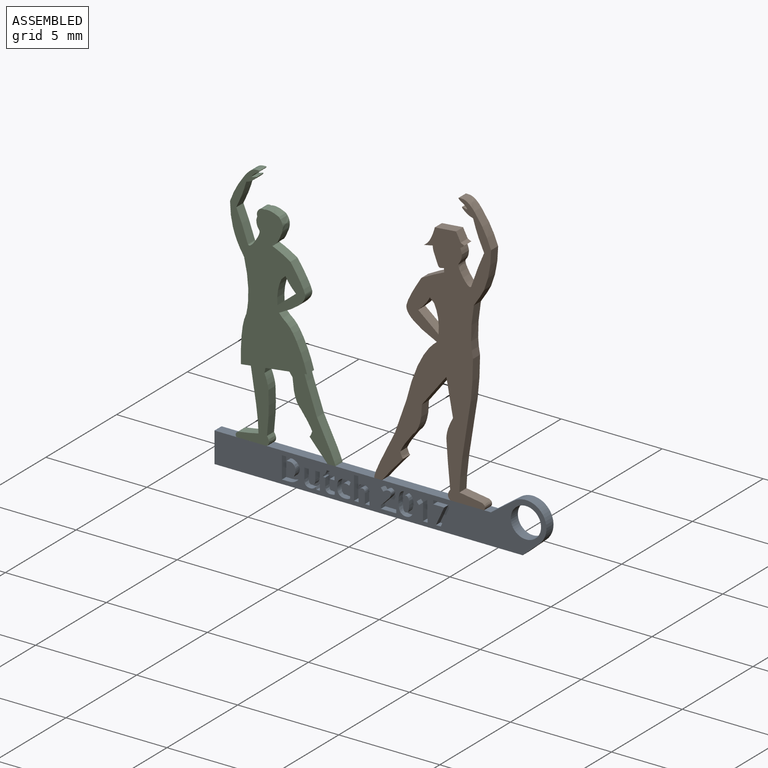
[diagram: assembled view]
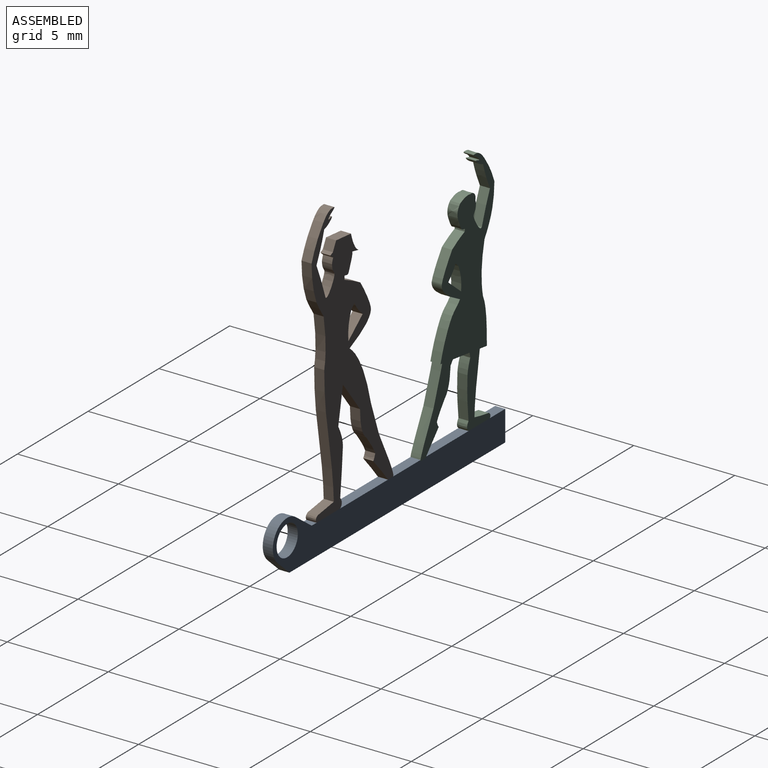
[diagram: assembled view, second angle]
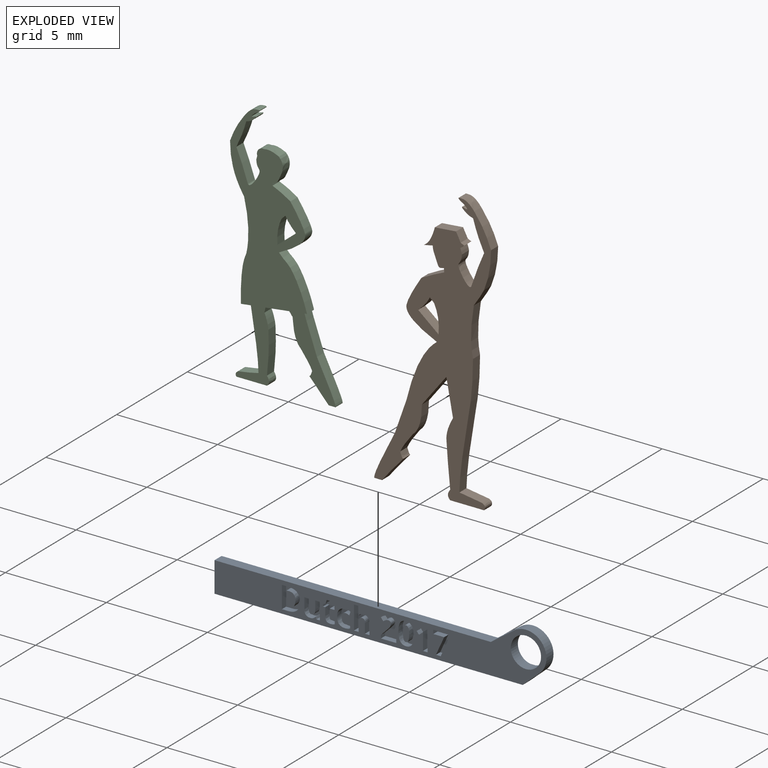
[diagram: exploded view]
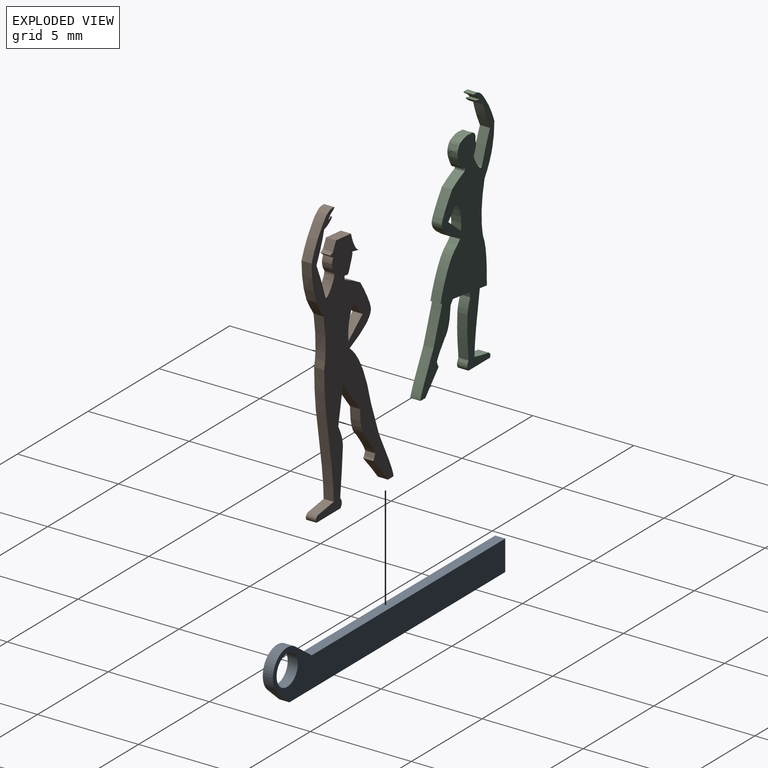
[diagram: exploded view, second angle]
ASSEMBLY  parts=3 mates=2
PART A: 155 faces, bbox 16.4x0.5x2.5 mm
  f0: plane 16.43x2.51mm, normal (0,-1,0), area 19.8mm2, adj f1,f2,f3,f4,f5,f6,f7,f9
  f1: plane 13.68x0.5mm, normal (0,0,1), area 6.8mm2, adj f0,f2,f6,f8
  f2: plane 1.5x0.5mm, normal (-1,0,0), area 0.8mm2, adj f0,f1,f3,f8
  f3: plane 15.26x0.5mm, normal (0,0,-1), area 7.6mm2, adj f0,f2,f4,f8
  f4: plane 0.83x0.74mm, normal (0.66,0,-0.75), area 0.6mm2, adj f0,f3,f5,f8
  f5: cylinder r=1.02mm len=1.78mm, axis (0,1,0), area 1.5mm2, adj f0,f4,f6,f8
  f6: plane 1.14x0.82mm, normal (-0.59,0,0.81), area 0.7mm2, adj f0,f1,f5,f8
  f7: cylinder r=0.75mm len=1.5mm, axis (0,1,0), area 2.4mm2, adj f0,f8
  f8: plane 16.43x2.51mm, normal (0,1,0), area 24.1mm2, adj f1,f2,f3,f4,f5,f6,f7
  f9: plane 0.3x0.23mm, normal (0,0,1), area 0.1mm2, adj f0,f10,f18,f19
  f10: plane 1.09x0.3mm, normal (-1,0,0), area 0.3mm2, adj f0,f9,f11,f19
  f11: plane 0.3x0.19mm, normal (0,0,-1), area 0.1mm2, adj f0,f10,f12,f19
  f12: plane 0.35x0.3mm, normal (0.62,0,-0.78), area 0.1mm2, adj f0,f11,f13,f19
  f13: plane 0.3x0.14mm, normal (0.78,0,0.63), area 0.1mm2, adj f0,f12,f14,f19
  f14: plane 0.3x0.13mm, normal (-0.63,0,0.78), area 0mm2, adj f0,f13,f15,f19
  f15: extruded ~0.3x0.08mm, area 0mm2, adj f0,f14,f16,f19
  f16: plane 0.3x0.11mm, normal (1,0,-0.03), area 0mm2, adj f0,f15,f17,f19
  f17: plane 0.3x0.1mm, normal (1,0,-0.02), area 0mm2, adj f0,f16,f18,f19
  f18: plane 0.63x0.3mm, normal (1,0,0), area 0.2mm2, adj f0,f9,f17,f19
  f19: plane 1.09x0.54mm, normal (0,-1,0), area 0.3mm2, adj f9,f10,f11,f12,f13,f14,f15,f16
  f20: extruded ~0.3x0.29mm, area 0.1mm2, adj f21,f35,f36,f153
  f21: extruded ~0.3x0.29mm, area 0.1mm2, adj f20,f22,f36,f153
  f22: extruded ~0.3x0.12mm, area 0mm2, adj f21,f23,f36,f153
  f23: extruded ~0.3x0.12mm, area 0mm2, adj f22,f24,f36,f153
  f24: extruded ~0.3x0.29mm, area 0.1mm2, adj f23,f25,f36,f153
  f25: extruded ~0.3x0.29mm, area 0.1mm2, adj f24,f26,f36,f153
  f26: extruded ~0.3x0.12mm, area 0mm2, adj f25,f35,f36,f153
  f27: extruded ~0.42x0.3mm, area 0.1mm2, adj f0,f28,f34,f36
  f28: extruded ~0.42x0.3mm, area 0.1mm2, adj f0,f27,f29,f36
  f29: extruded ~0.3x0.29mm, area 0.1mm2, adj f0,f28,f30,f36
  f30: extruded ~0.3x0.29mm, area 0.1mm2, adj f0,f29,f31,f36
  f31: extruded ~0.43x0.3mm, area 0.1mm2, adj f0,f30,f32,f36
  f32: extruded ~0.42x0.3mm, area 0.1mm2, adj f0,f31,f33,f36
  f33: extruded ~0.3x0.28mm, area 0.1mm2, adj f0,f32,f34,f36
  f34: extruded ~0.3x0.29mm, area 0.1mm2, adj f0,f27,f33,f36
  f35: extruded ~0.3x0.12mm, area 0mm2, adj f20,f26,f36,f153
  f36: plane 1.12x0.76mm, normal (0,-1,0), area 0.5mm2, adj f20,f21,f22,f23,f24,f25,f26,f27
  f37: plane 0.76x0.3mm, normal (0,0,1), area 0.2mm2, adj f0,f38,f60,f61
  f38: plane 0.3x0.19mm, normal (-1,0,0), area 0.1mm2, adj f0,f37,f39,f61
  f39: plane 0.48x0.3mm, normal (0,0,-1), area 0.1mm2, adj f0,f38,f40,f61
  f40: plane 0.3x0.01mm, normal (-1,0,0), area 0mm2, adj f0,f39,f41,f61
  f41: plane 0.3x0.14mm, normal (-0.69,0,0.73), area 0.1mm2, adj f0,f40,f42,f61
  f42: extruded ~0.3x0.2mm, area 0.1mm2, adj f0,f41,f43,f61
  f43: extruded ~0.3x0.14mm, area 0mm2, adj f0,f42,f44,f61
  f44: extruded ~0.3x0.14mm, area 0mm2, adj f0,f43,f45,f61
  f45: extruded ~0.3x0.15mm, area 0mm2, adj f0,f44,f46,f61
  f46: extruded ~0.3x0.12mm, area 0mm2, adj f0,f45,f47,f61
  f47: extruded ~0.3x0.18mm, area 0.1mm2, adj f0,f46,f48,f61
  f48: extruded ~0.3x0.14mm, area 0mm2, adj f0,f47,f49,f61
  f49: extruded ~0.3x0.12mm, area 0mm2, adj f0,f48,f50,f61
  f50: extruded ~0.3x0.13mm, area 0mm2, adj f0,f49,f51,f61
  f51: plane 0.3x0.15mm, normal (0.76,0,0.65), area 0.1mm2, adj f0,f50,f52,f61
  f52: extruded ~0.3x0.12mm, area 0mm2, adj f0,f51,f53,f61
  f53: extruded ~0.3x0.12mm, area 0mm2, adj f0,f52,f54,f61
  f54: extruded ~0.3x0.1mm, area 0mm2, adj f0,f53,f55,f61
  f55: extruded ~0.3x0.1mm, area 0mm2, adj f0,f54,f56,f61
  f56: extruded ~0.3x0.09mm, area 0mm2, adj f0,f55,f57,f61
  f57: extruded ~0.3x0.09mm, area 0mm2, adj f0,f56,f58,f61
  f58: extruded ~0.3x0.17mm, area 0.1mm2, adj f0,f57,f59,f61
  f59: plane 0.3x0.28mm, normal (0.71,0,-0.7), area 0.1mm2, adj f0,f58,f60,f61
  f60: plane 0.3x0.16mm, normal (1,0,0), area 0mm2, adj f0,f37,f59,f61
  f61: plane 1.11x0.77mm, normal (0,-1,0), area 0.4mm2, adj f37,f38,f39,f40,f41,f42,f43,f44
  f62: extruded ~0.35x0.31mm, area 0.2mm2, adj f63,f73,f74,f154
  f63: extruded ~0.36x0.33mm, area 0.2mm2, adj f62,f64,f74,f154
  f64: plane 0.3x0.1mm, normal (0,0,-1), area 0mm2, adj f63,f65,f74,f154
  f65: plane 0.71x0.3mm, normal (-1,0,0), area 0.2mm2, adj f64,f73,f74,f154
  f66: extruded ~0.41x0.3mm, area 0.1mm2, adj f0,f67,f72,f74
  f67: extruded ~0.39x0.3mm, area 0.1mm2, adj f0,f66,f68,f74
  f68: extruded ~0.42x0.3mm, area 0.1mm2, adj f0,f67,f69,f74
  f69: plane 0.34x0.3mm, normal (0,0,-1), area 0.1mm2, adj f0,f68,f70,f74
  f70: plane 1.09x0.3mm, normal (1,0,0), area 0.3mm2, adj f0,f69,f71,f74
  f71: plane 0.31x0.3mm, normal (0,0,1), area 0.1mm2, adj f0,f70,f72,f74
  f72: extruded ~0.44x0.3mm, area 0.1mm2, adj f0,f66,f71,f74
  f73: plane 0.3x0.12mm, normal (0,0,1), area 0mm2, adj f62,f65,f74,f154
  f74: plane 1.09x0.91mm, normal (0,-1,0), area 0.6mm2, adj f62,f63,f64,f65,f66,f67,f68,f69
  f75: plane 0.3x0.11mm, normal (0.96,0,0.28), area 0mm2, adj f0,f76,f91,f92
  f76: plane 0.3x0.17mm, normal (0,0,1), area 0.1mm2, adj f0,f75,f77,f92
  f77: plane 0.83x0.3mm, normal (-1,0,0), area 0.3mm2, adj f0,f76,f78,f92
  f78: plane 0.3x0.23mm, normal (0,0,-1), area 0.1mm2, adj f0,f77,f79,f92
  f79: plane 0.39x0.3mm, normal (1,0,0), area 0.1mm2, adj f0,f78,f80,f92
  f80: extruded ~0.3x0.21mm, area 0.1mm2, adj f0,f79,f81,f92
  f81: extruded ~0.3x0.14mm, area 0mm2, adj f0,f80,f82,f92
  f82: extruded ~0.3x0.1mm, area 0mm2, adj f0,f81,f83,f92
  f83: extruded ~0.3x0.14mm, area 0mm2, adj f0,f82,f84,f92
  f84: plane 0.49x0.3mm, normal (-1,0,0), area 0.1mm2, adj f0,f83,f85,f92
  f85: plane 0.3x0.23mm, normal (0,0,-1), area 0.1mm2, adj f0,f84,f86,f92
  f86: plane 0.54x0.3mm, normal (1,0,0), area 0.2mm2, adj f0,f85,f87,f92
  f87: extruded ~0.3x0.23mm, area 0.1mm2, adj f0,f86,f88,f92
  f88: extruded ~0.3x0.22mm, area 0.1mm2, adj f0,f87,f89,f92
  f89: extruded ~0.3x0.15mm, area 0mm2, adj f0,f88,f90,f92
  f90: extruded ~0.3x0.1mm, area 0mm2, adj f0,f89,f91,f92
  f91: plane 0.3x0.01mm, normal (0,0,1), area 0mm2, adj f0,f75,f90,f92
  f92: plane 0.85x0.77mm, normal (0,-1,0), area 0.4mm2, adj f75,f76,f77,f78,f79,f80,f81,f82
  f93: extruded ~0.3x0.14mm, area 0mm2, adj f0,f94,f110,f111
  f94: extruded ~0.3x0.07mm, area 0mm2, adj f0,f93,f95,f111
  f95: extruded ~0.3x0.07mm, area 0mm2, adj f0,f94,f96,f111
  f96: plane 0.4x0.3mm, normal (-1,0,0), area 0.1mm2, adj f0,f95,f97,f111
  f97: plane 0.3x0.23mm, normal (0,0,1), area 0.1mm2, adj f0,f96,f98,f111
  f98: plane 0.3x0.17mm, normal (-1,0,0), area 0.1mm2, adj f0,f97,f99,f111
  f99: plane 0.3x0.23mm, normal (0,0,-1), area 0.1mm2, adj f0,f98,f100,f111
  f100: plane 0.3x0.18mm, normal (-1,0,0), area 0.1mm2, adj f0,f99,f101,f111
  f101: plane 0.3x0.15mm, normal (0,0,-1), area 0mm2, adj f0,f100,f102,f111
  f102: plane 0.3x0.18mm, normal (0.94,0,-0.35), area 0.1mm2, adj f0,f101,f103,f111
  f103: plane 0.3x0.13mm, normal (0.52,0,-0.85), area 0mm2, adj f0,f102,f104,f111
  f104: plane 0.3x0.1mm, normal (1,0,0), area 0mm2, adj f0,f103,f105,f111
  f105: plane 0.3x0.11mm, normal (0,0,1), area 0mm2, adj f0,f104,f106,f111
  f106: plane 0.4x0.3mm, normal (1,0,0), area 0.1mm2, adj f0,f105,f107,f111
  f107: extruded ~0.3x0.21mm, area 0.1mm2, adj f0,f106,f108,f111
  f108: extruded ~0.3x0.2mm, area 0.1mm2, adj f0,f107,f109,f111
  f109: extruded ~0.3x0.21mm, area 0.1mm2, adj f0,f108,f110,f111
  f110: plane 0.3x0.17mm, normal (-1,0,0), area 0.1mm2, adj f0,f93,f109,f111
  f111: plane 1.03x0.58mm, normal (0,-1,0), area 0.3mm2, adj f93,f94,f95,f96,f97,f98,f99,f100
  f112: extruded ~0.43x0.39mm, area 0.2mm2, adj f0,f113,f125,f126
  f113: extruded ~0.3x0.14mm, area 0mm2, adj f0,f112,f114,f126
  f114: extruded ~0.3x0.11mm, area 0mm2, adj f0,f113,f115,f126
  f115: plane 0.3x0.19mm, normal (-1,0,0), area 0.1mm2, adj f0,f114,f116,f126
  f116: extruded ~0.3x0.11mm, area 0mm2, adj f0,f115,f117,f126
  f117: extruded ~0.3x0.12mm, area 0mm2, adj f0,f116,f118,f126
  f118: extruded ~0.3x0.24mm, area 0.1mm2, adj f0,f117,f119,f126
  f119: extruded ~0.3x0.25mm, area 0.1mm2, adj f0,f118,f120,f126
  f120: extruded ~0.3x0.09mm, area 0mm2, adj f0,f119,f121,f126
  f121: extruded ~0.3x0.1mm, area 0mm2, adj f0,f120,f122,f126
  f122: plane 0.3x0.18mm, normal (-0.93,0,0.36), area 0.1mm2, adj f0,f121,f123,f126
  f123: extruded ~0.3x0.26mm, area 0.1mm2, adj f0,f122,f124,f126
  f124: extruded ~0.3x0.3mm, area 0.1mm2, adj f0,f123,f125,f126
  f125: extruded ~0.33x0.3mm, area 0.1mm2, adj f0,f112,f124,f126
  f126: plane 0.86x0.67mm, normal (0,-1,0), area 0.3mm2, adj f112,f113,f114,f115,f116,f117,f118,f119
  f127: plane 0.3x0.23mm, normal (0,0,1), area 0.1mm2, adj f0,f128,f143,f144
  f128: plane 0.54x0.3mm, normal (-1,0,0), area 0.2mm2, adj f0,f127,f129,f144
  f129: extruded ~0.3x0.23mm, area 0.1mm2, adj f0,f128,f130,f144
  f130: extruded ~0.3x0.22mm, area 0.1mm2, adj f0,f129,f131,f144
  f131: extruded ~0.3x0.24mm, area 0.1mm2, adj f0,f130,f132,f144
  f132: plane 0.3x0.01mm, normal (0,0,-1), area 0mm2, adj f0,f131,f133,f144
  f133: plane 0.3x0.07mm, normal (-1,0,0.08), area 0mm2, adj f0,f132,f134,f144
  f134: extruded ~0.3x0.13mm, area 0mm2, adj f0,f133,f135,f144
  f135: plane 0.3x0.24mm, normal (-1,0,0), area 0.1mm2, adj f0,f134,f136,f144
  f136: plane 0.3x0.23mm, normal (0,0,-1), area 0.1mm2, adj f0,f135,f137,f144
  f137: plane 1.16x0.3mm, normal (1,0,0), area 0.3mm2, adj f0,f136,f138,f144
  f138: plane 0.3x0.23mm, normal (0,0,1), area 0.1mm2, adj f0,f137,f139,f144
  f139: plane 0.39x0.3mm, normal (-1,0,0), area 0.1mm2, adj f0,f138,f140,f144
  f140: extruded ~0.3x0.21mm, area 0.1mm2, adj f0,f139,f141,f144
  f141: extruded ~0.3x0.14mm, area 0mm2, adj f0,f140,f142,f144
  f142: extruded ~0.3x0.18mm, area 0.1mm2, adj f0,f141,f143,f144
  f143: plane 0.49x0.3mm, normal (1,0,0), area 0.1mm2, adj f0,f127,f142,f144
  f144: plane 1.16x0.77mm, normal (0,-1,0), area 0.5mm2, adj f127,f128,f129,f130,f131,f132,f133,f134
  f145: plane 0.9x0.41mm, normal (0.91,0,-0.42), area 0.3mm2, adj f0,f146,f151,f152
  f146: plane 0.3x0.24mm, normal (0,0,1), area 0.1mm2, adj f0,f145,f147,f152
  f147: plane 0.94x0.41mm, normal (-0.92,0,0.4), area 0.3mm2, adj f0,f146,f148,f152
  f148: plane 0.3x0.15mm, normal (-1,0,0), area 0mm2, adj f0,f147,f149,f152
  f149: plane 0.78x0.3mm, normal (0,0,-1), area 0.2mm2, adj f0,f148,f150,f152
  f150: plane 0.3x0.19mm, normal (1,0,0), area 0.1mm2, adj f0,f149,f151,f152
  f151: plane 0.54x0.3mm, normal (0,0,1), area 0.2mm2, adj f0,f145,f150,f152
  f152: plane 1.09x0.78mm, normal (0,-1,0), area 0.4mm2, adj f145,f146,f147,f148,f149,f150,f151
  f153: plane 0.75x0.3mm, normal (0,-1,0), area 0.2mm2, adj f20,f21,f22,f23,f24,f25,f26,f35
  f154: plane 0.71x0.43mm, normal (0,-1,0), area 0.3mm2, adj f62,f63,f64,f65,f73
PART B: 49 faces, bbox 5.9x0.5x13.7 mm
  f0: extruded ~1.51x1.3mm, area 1.1mm2, adj f1,f46,f47,f48
  f1: extruded ~3x1.5mm, area 1.7mm2, adj f0,f2,f47,f48
  f2: extruded ~1.62x0.57mm, area 0.9mm2, adj f1,f3,f47,f48
  f3: extruded ~2.29x1.02mm, area 1.3mm2, adj f2,f4,f47,f48
  f4: plane 0.5x0.37mm, normal (0,0,-1), area 0.2mm2, adj f3,f5,f47,f48
  f5: extruded ~1.23x1.05mm, area 0.8mm2, adj f4,f6,f47,f48
  f6: extruded ~0.5x0.29mm, area 0.2mm2, adj f5,f7,f47,f48
  f7: extruded ~0.96x0.64mm, area 0.6mm2, adj f6,f8,f47,f48
  f8: extruded ~1.43x0.5mm, area 0.8mm2, adj f7,f9,f47,f48
  f9: extruded ~1.56x1.21mm, area 1mm2, adj f8,f10,f47,f48
  f10: extruded ~1.76x0.5mm, area 0.9mm2, adj f9,f11,f47,f48
  f11: extruded ~1x0.5mm, area 0.5mm2, adj f10,f12,f47,f48
  f12: extruded ~2.24x0.5mm, area 1.1mm2, adj f11,f13,f47,f48
  f13: extruded ~0.5x0.47mm, area 0.3mm2, adj f12,f14,f47,f48
  f14: plane 1.67x0.5mm, normal (0,0,-1), area 0.8mm2, adj f13,f15,f47,f48
  f15: extruded ~0.5x0.3mm, area 0.2mm2, adj f14,f16,f47,f48
  f16: extruded ~1.12x0.5mm, area 0.6mm2, adj f15,f17,f47,f48
  f17: extruded ~3.31x0.5mm, area 1.7mm2, adj f16,f18,f47,f48
  f18: extruded ~2.84x0.5mm, area 1.4mm2, adj f17,f19,f47,f48
  f19: extruded ~2.41x0.5mm, area 1.2mm2, adj f18,f20,f47,f48
  f20: extruded ~0.82x0.51mm, area 0.5mm2, adj f19,f21,f47,f48
  f21: extruded ~1.87x0.5mm, area 1mm2, adj f20,f22,f47,f48
  f22: extruded ~1.34x0.71mm, area 0.8mm2, adj f21,f23,f47,f48
  f23: extruded ~0.73x0.58mm, area 0.5mm2, adj f22,f24,f47,f48
  f24: extruded ~0.5x0.26mm, area 0.3mm2, adj f23,f25,f47,f48
  f25: extruded ~0.5x0.21mm, area 0.2mm2, adj f24,f26,f47,f48
  f26: extruded ~0.5x0.21mm, area 0.2mm2, adj f25,f27,f47,f48
  f27: extruded ~0.5x0.35mm, area 0.2mm2, adj f26,f28,f47,f48
  f28: extruded ~1.41x0.55mm, area 0.8mm2, adj f27,f29,f47,f48
  f29: extruded ~1.65x0.63mm, area 0.9mm2, adj f28,f30,f47,f48
  f30: extruded ~1.35x0.64mm, area 0.8mm2, adj f29,f31,f47,f48
  f31: extruded ~0.5x0.27mm, area 0.1mm2, adj f30,f32,f47,f48
  f32: plane 0.5x0.19mm, normal (0.64,0,-0.77), area 0.1mm2, adj f31,f33,f47,f48
  f33: plane 0.5x0.18mm, normal (0.42,0,0.91), area 0.1mm2, adj f32,f34,f47,f48
  f34: plane 0.5x0.44mm, normal (0.89,0,0.46), area 0.3mm2, adj f33,f35,f47,f48
  f35: plane 1.05x0.5mm, normal (-0.09,0,1), area 0.5mm2, adj f34,f36,f47,f48
  f36: extruded ~0.93x0.54mm, area 0.6mm2, adj f35,f37,f47,f48
  f37: plane 0.5x0.44mm, normal (0.2,0,-0.98), area 0.2mm2, adj f36,f38,f47,f48
  f38: extruded ~0.5x0.33mm, area 0.2mm2, adj f37,f39,f47,f48
  f39: extruded ~0.57x0.5mm, area 0.4mm2, adj f38,f40,f47,f48
  f40: plane 0.5x0.19mm, normal (-1,0,-0.04), area 0.1mm2, adj f39,f41,f47,f48
  f41: extruded ~1.13x0.55mm, area 0.6mm2, adj f40,f46,f47,f48
  f42: extruded ~1.34x0.5mm, area 0.7mm2, adj f43,f45,f47,f48
  f43: extruded ~1.01x0.83mm, area 0.7mm2, adj f42,f44,f47,f48
  f44: extruded ~0.72x0.58mm, area 0.5mm2, adj f43,f45,f47,f48
  f45: plane 0.5x0.22mm, normal (-0.69,0,-0.72), area 0.2mm2, adj f42,f44,f47,f48
  f46: extruded ~1.36x0.72mm, area 0.8mm2, adj f0,f41,f47,f48
  f47: plane 13.69x5.88mm, normal (0,-1,0), area 25.4mm2, adj f0,f1,f2,f3,f4,f5,f6,f7
  f48: plane 13.69x5.88mm, normal (0,1,0), area 25.4mm2, adj f0,f1,f2,f3,f4,f5,f6,f7
PART C: 53 faces, bbox 5.3x0.5x12.3 mm
  f0: extruded ~0.5x0.19mm, area 0.1mm2, adj f1,f50,f51,f52
  f1: extruded ~1.29x1.04mm, area 0.9mm2, adj f0,f2,f51,f52
  f2: extruded ~0.5x0.07mm, area 0mm2, adj f1,f3,f51,f52
  f3: extruded ~0.5x0.06mm, area 0mm2, adj f2,f4,f51,f52
  f4: extruded ~1.25x0.72mm, area 0.7mm2, adj f3,f5,f51,f52
  f5: extruded ~0.89x0.5mm, area 0.5mm2, adj f4,f6,f51,f52
  f6: plane 0.5x0.13mm, normal (0.99,0,0.13), area 0.1mm2, adj f5,f7,f51,f52
  f7: extruded ~0.52x0.5mm, area 0.4mm2, adj f6,f8,f51,f52
  f8: extruded ~0.73x0.5mm, area 0.4mm2, adj f7,f9,f51,f52
  f9: extruded ~0.72x0.5mm, area 0.4mm2, adj f8,f10,f51,f52
  f10: extruded ~0.5x0.4mm, area 0.3mm2, adj f9,f11,f51,f52
  f11: extruded ~0.5x0.18mm, area 0.1mm2, adj f10,f12,f51,f52
  f12: extruded ~1.24x0.58mm, area 0.8mm2, adj f11,f13,f51,f52
  f13: extruded ~1.49x0.57mm, area 0.8mm2, adj f12,f14,f51,f52
  f14: extruded ~1.28x0.5mm, area 0.7mm2, adj f13,f15,f51,f52
  f15: extruded ~0.5x0.32mm, area 0.2mm2, adj f14,f16,f51,f52
  f16: extruded ~0.5x0.19mm, area 0.1mm2, adj f15,f17,f51,f52
  f17: extruded ~0.5x0.19mm, area 0.2mm2, adj f16,f18,f51,f52
  f18: extruded ~0.5x0.24mm, area 0.2mm2, adj f17,f19,f51,f52
  f19: extruded ~0.65x0.52mm, area 0.4mm2, adj f18,f20,f51,f52
  f20: extruded ~1.21x0.64mm, area 0.7mm2, adj f19,f21,f51,f52
  f21: extruded ~1.69x0.5mm, area 0.9mm2, adj f20,f22,f51,f52
  f22: extruded ~0.63x0.5mm, area 0.4mm2, adj f21,f23,f51,f52
  f23: extruded ~2.5x0.5mm, area 1.3mm2, adj f22,f24,f51,f52
  f24: extruded ~2.34x0.5mm, area 1.2mm2, adj f23,f25,f51,f52
  f25: plane 0.5x0.49mm, normal (0.13,0,-0.99), area 0.2mm2, adj f24,f26,f51,f52
  f26: extruded ~0.5x0.09mm, area 0mm2, adj f25,f27,f51,f52
  f27: extruded ~2.84x0.5mm, area 1.4mm2, adj f26,f28,f51,f52
  f28: extruded ~1x0.5mm, area 0.5mm2, adj f27,f29,f51,f52
  f29: extruded ~0.5x0.27mm, area 0.2mm2, adj f28,f30,f51,f52
  f30: plane 1.51x0.5mm, normal (0,0,-1), area 0.8mm2, adj f29,f31,f51,f52
  f31: extruded ~0.5x0.45mm, area 0.3mm2, adj f30,f32,f51,f52
  f32: extruded ~1.88x0.5mm, area 0.9mm2, adj f31,f33,f51,f52
  f33: extruded ~0.91x0.5mm, area 0.5mm2, adj f32,f34,f51,f52
  f34: extruded ~0.5x0.24mm, area 0.1mm2, adj f33,f35,f51,f52
  f35: plane 1.18x0.5mm, normal (0.13,0,-0.99), area 0.6mm2, adj f34,f36,f51,f52
  f36: extruded ~0.5x0.21mm, area 0.1mm2, adj f35,f37,f51,f52
  f37: extruded ~1.3x0.5mm, area 0.7mm2, adj f36,f38,f51,f52
  f38: extruded ~0.86x0.58mm, area 0.5mm2, adj f37,f39,f51,f52
  f39: extruded ~0.5x0.26mm, area 0.2mm2, adj f38,f40,f51,f52
  f40: extruded ~1.05x0.95mm, area 0.7mm2, adj f39,f41,f51,f52
  f41: plane 0.5x0.34mm, normal (0,0,-1), area 0.2mm2, adj f40,f42,f51,f52
  f42: extruded ~2.01x0.92mm, area 1.1mm2, adj f41,f43,f51,f52
  f43: extruded ~1.47x0.52mm, area 0.8mm2, adj f42,f44,f51,f52
  f44: extruded ~0.5x0.31mm, area 0.2mm2, adj f43,f45,f51,f52
  f45: plane 0.5x0.12mm, normal (0.13,0,-0.99), area 0.1mm2, adj f44,f50,f51,f52
  f46: extruded ~0.91x0.75mm, area 0.6mm2, adj f47,f49,f51,f52
  f47: extruded ~1.21x0.5mm, area 0.6mm2, adj f46,f48,f51,f52
  f48: plane 0.5x0.2mm, normal (0.69,0,-0.72), area 0.1mm2, adj f47,f49,f51,f52
  f49: extruded ~0.65x0.52mm, area 0.4mm2, adj f46,f48,f51,f52
  f50: extruded ~2.19x1.21mm, area 1.3mm2, adj f0,f45,f51,f52
  f51: plane 12.32x5.31mm, normal (0,-1,0), area 21.5mm2, adj f0,f1,f2,f3,f4,f5,f6,f7
  f52: plane 12.32x5.31mm, normal (0,1,0), area 21.5mm2, adj f0,f1,f2,f3,f4,f5,f6,f7
PLACE A t=(3.21,-2.14,1.34)mm
PLACE B t=(-1.75,-2.14,1.34)mm
PLACE C t=(2.71,-2.14,1.32)mm
MATE planar B.f14 <-> A.f1  axis (0,0,-1) through (6.86,-2.14,1.34)mm
MATE planar C.f30 <-> A.f1  axis (0,0,-1) through (-4.64,-2.14,1.34)mm
